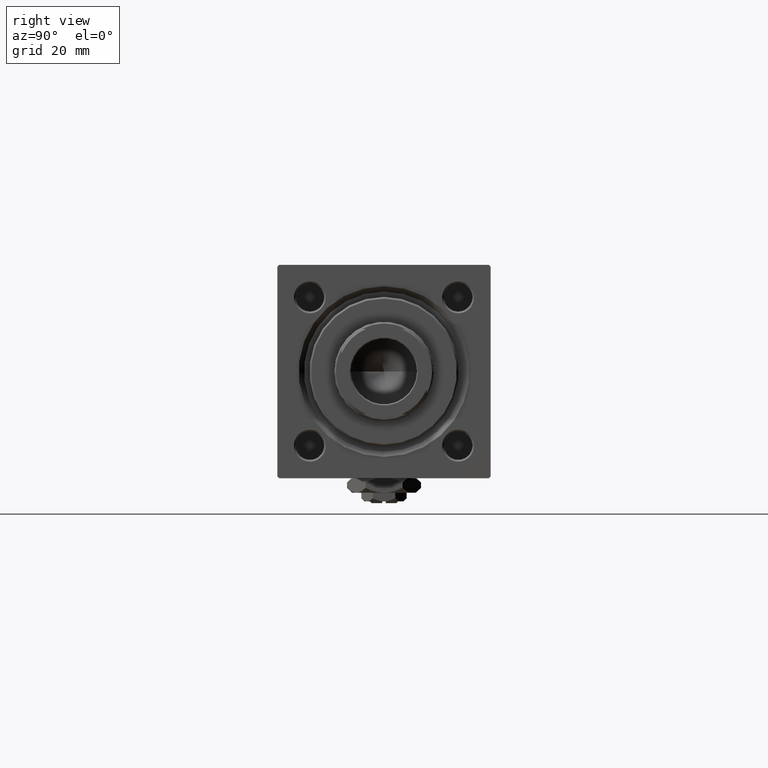
[diagram: clean part render]
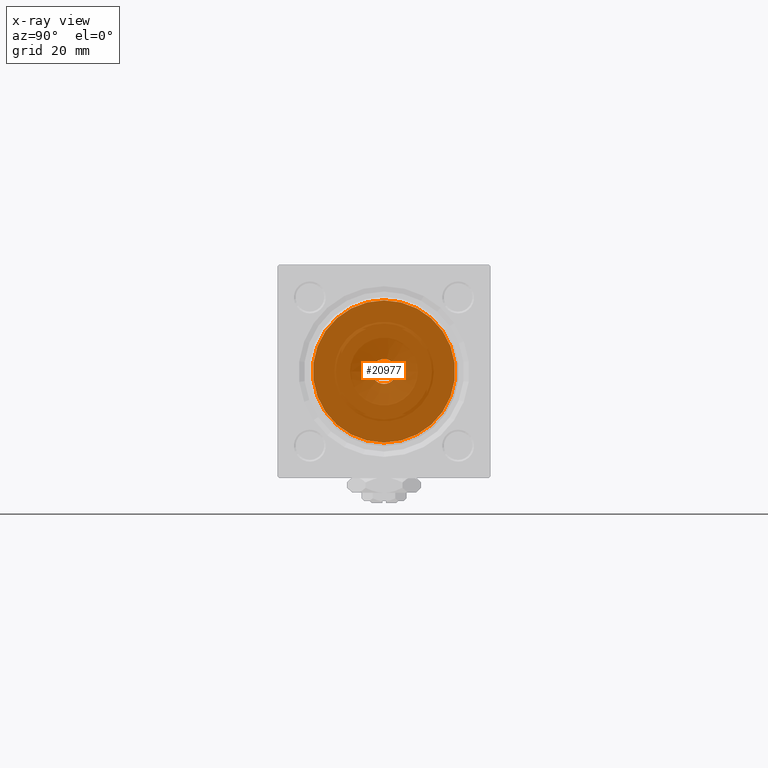
[diagram: x-ray — body ghosted, one internal face saturated and labeled with its STEP entity id]
A machine part, right view, then the same camera in x-ray: the body is ghosted and one INTERNAL B-rep face — a face not visible from any outside direction — is saturated and labeled: STEP entity #20977.
In plain terms, the highlighted planar face has unit normal (-1, 0, 0).
Its self-contained STEP definition (entity closure, byte-faithful):
#2970 = DIRECTION ( 'NONE',  ( 1.000000000000000000, 0.000000000000000000, 0.000000000000000000 ) ) ;
#2987 = CIRCLE ( 'NONE', #24071, 20.00000000000000000 ) ;
#3185 = CARTESIAN_POINT ( 'NONE',  ( 37.00000000000000711, 4.286263797015736595E-16, -3.500000000000000000 ) ) ;
#3259 = AXIS2_PLACEMENT_3D ( 'NONE', #25989, #41594, #9875 ) ;
#6891 = CARTESIAN_POINT ( 'NONE',  ( 37.00000000000000000, -2.602085213965210642E-15, 20.00000000000000000 ) ) ;
#8464 = EDGE_CURVE ( 'NONE', #51057, #48227, #27528, .T. ) ;
#9875 = DIRECTION ( 'NONE',  ( 0.000000000000000000, 0.000000000000000000, 1.000000000000000000 ) ) ;
#11497 = ORIENTED_EDGE ( 'NONE', *, *, #14242, .T. ) ;
#11742 = CARTESIAN_POINT ( 'NONE',  ( 37.00000000000000000, -2.602085213965210642E-15, 0.000000000000000000 ) ) ;
#13214 = VERTEX_POINT ( 'NONE', #20897 ) ;
#13377 = DIRECTION ( 'NONE',  ( -0.000000000000000000, 0.000000000000000000, 1.000000000000000000 ) ) ;
#14242 = EDGE_CURVE ( 'NONE', #48227, #51057, #41222, .T. ) ;
#14495 = EDGE_LOOP ( 'NONE', ( #19675, #11497 ) ) ;
#14947 = EDGE_CURVE ( 'NONE', #20449, #13214, #28612, .T. ) ;
#16300 = ORIENTED_EDGE ( 'NONE', *, *, #14947, .T. ) ;
#17329 = FACE_OUTER_BOUND ( 'NONE', #32679, .T. ) ;
#17400 = AXIS2_PLACEMENT_3D ( 'NONE', #41456, #21358, #17646 ) ;
#17646 = DIRECTION ( 'NONE',  ( 0.000000000000000000, 0.000000000000000000, 1.000000000000000000 ) ) ;
#18050 = ORIENTED_EDGE ( 'NONE', *, *, #33363, .T. ) ;
#19154 = DIRECTION ( 'NONE',  ( 0.000000000000000000, 0.000000000000000000, -1.000000000000000000 ) ) ;
#19350 = CARTESIAN_POINT ( 'NONE',  ( 37.00000000000000000, -2.602085213965210642E-15, 0.000000000000000000 ) ) ;
#19675 = ORIENTED_EDGE ( 'NONE', *, *, #8464, .T. ) ;
#20449 = VERTEX_POINT ( 'NONE', #6891 ) ;
#20897 = CARTESIAN_POINT ( 'NONE',  ( 37.00000000000000000, -1.527916156705046464E-16, -20.00000000000000000 ) ) ;
#20977 = ADVANCED_FACE ( 'NONE', ( #37441, #17329 ), #49067, .F. ) ;
#20990 = AXIS2_PLACEMENT_3D ( 'NONE', #11742, #44007, #19154 ) ;
#21358 = DIRECTION ( 'NONE',  ( -1.000000000000000000, 0.000000000000000000, -0.000000000000000000 ) ) ;
#24071 = AXIS2_PLACEMENT_3D ( 'NONE', #19350, #2970, #46600 ) ;
#25989 = CARTESIAN_POINT ( 'NONE',  ( 37.00000000000000711, 0.000000000000000000, 0.000000000000000000 ) ) ;
#27528 = CIRCLE ( 'NONE', #17400, 3.500000000000000000 ) ;
#28612 = CIRCLE ( 'NONE', #20990, 20.00000000000000000 ) ;
#32679 = EDGE_LOOP ( 'NONE', ( #16300, #18050 ) ) ;
#33363 = EDGE_CURVE ( 'NONE', #13214, #20449, #2987, .T. ) ;
#33477 = CARTESIAN_POINT ( 'NONE',  ( 37.00000000000000000, 0.000000000000000000, 0.000000000000000000 ) ) ;
#33865 = CARTESIAN_POINT ( 'NONE',  ( 37.00000000000000711, 0.000000000000000000, 3.500000000000000000 ) ) ;
#37441 = FACE_BOUND ( 'NONE', #14495, .T. ) ;
#41222 = CIRCLE ( 'NONE', #3259, 3.500000000000000000 ) ;
#41456 = CARTESIAN_POINT ( 'NONE',  ( 37.00000000000000711, 0.000000000000000000, 0.000000000000000000 ) ) ;
#41594 = DIRECTION ( 'NONE',  ( -1.000000000000000000, 0.000000000000000000, -0.000000000000000000 ) ) ;
#44007 = DIRECTION ( 'NONE',  ( 1.000000000000000000, 0.000000000000000000, 0.000000000000000000 ) ) ;
#46600 = DIRECTION ( 'NONE',  ( 0.000000000000000000, 0.000000000000000000, -1.000000000000000000 ) ) ;
#48227 = VERTEX_POINT ( 'NONE', #3185 ) ;
#48950 = AXIS2_PLACEMENT_3D ( 'NONE', #33477, #49585, #13377 ) ;
#49067 = PLANE ( 'NONE',  #48950 ) ;
#49585 = DIRECTION ( 'NONE',  ( -1.000000000000000000, 0.000000000000000000, -0.000000000000000000 ) ) ;
#51057 = VERTEX_POINT ( 'NONE', #33865 ) ;